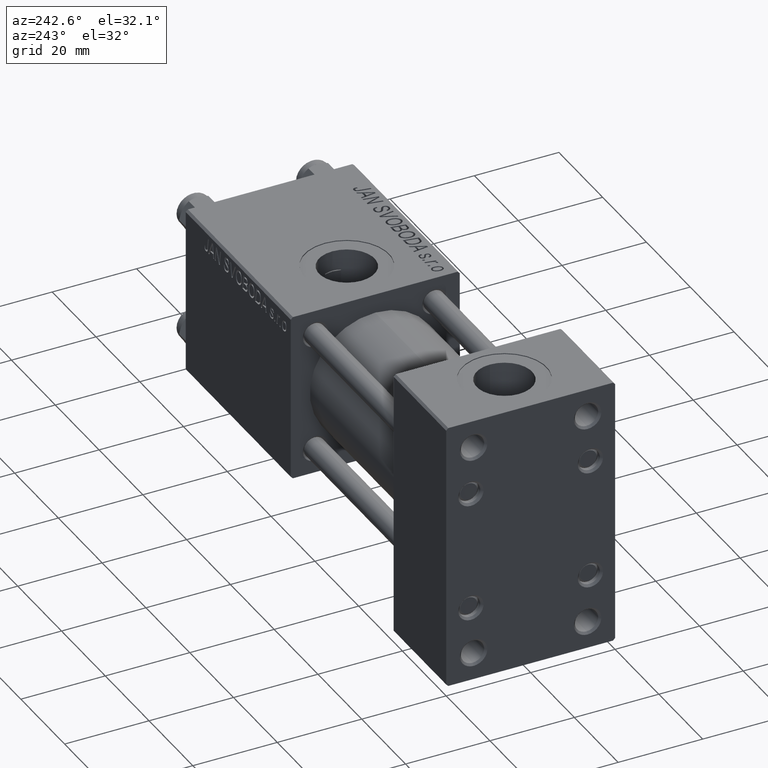
[diagram: clean part render]
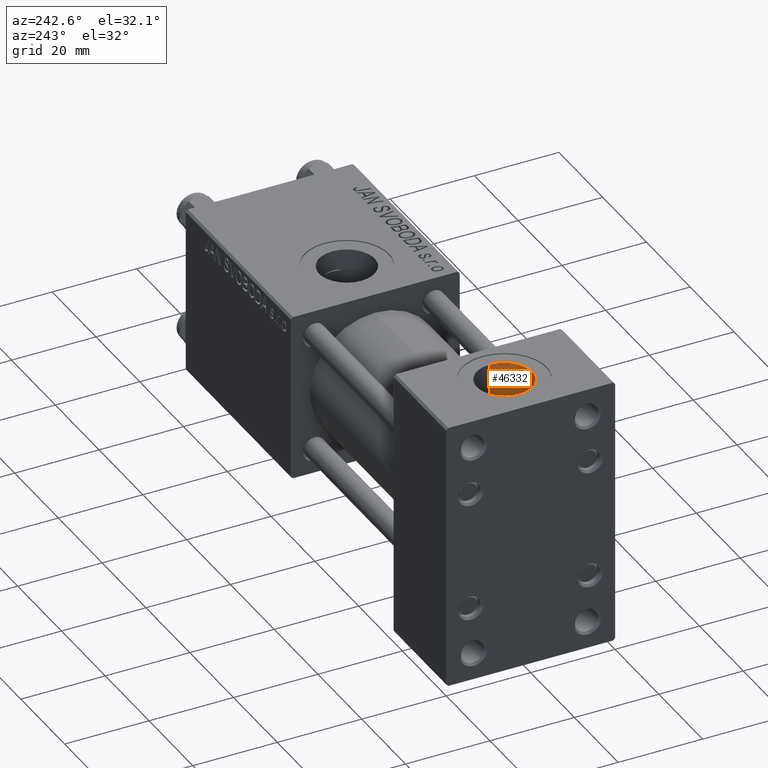
[diagram: same view with one face highlighted and labeled with its STEP entity id]
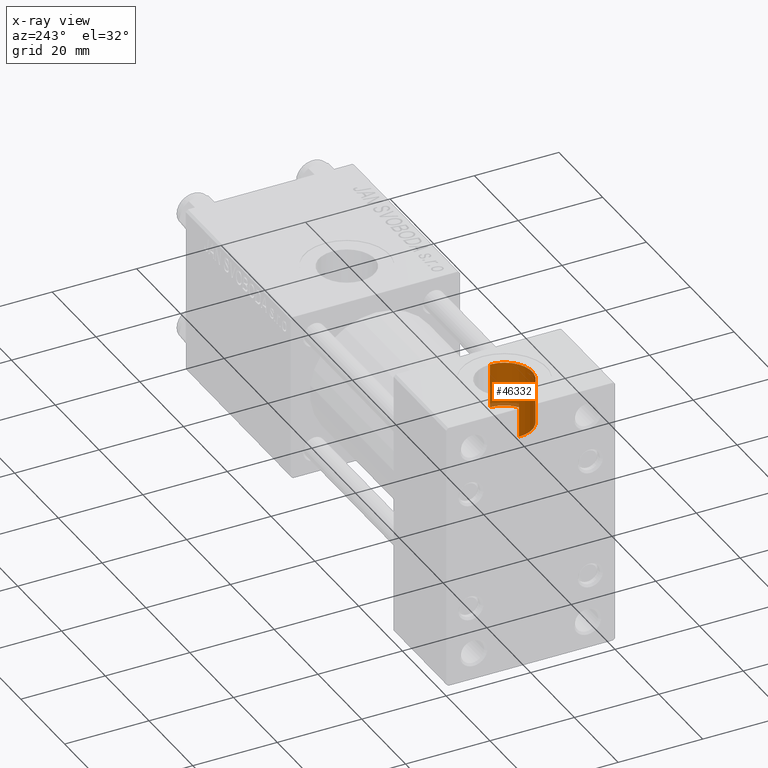
[diagram: x-ray of the same camera — body ghosted, the highlighted face saturated]
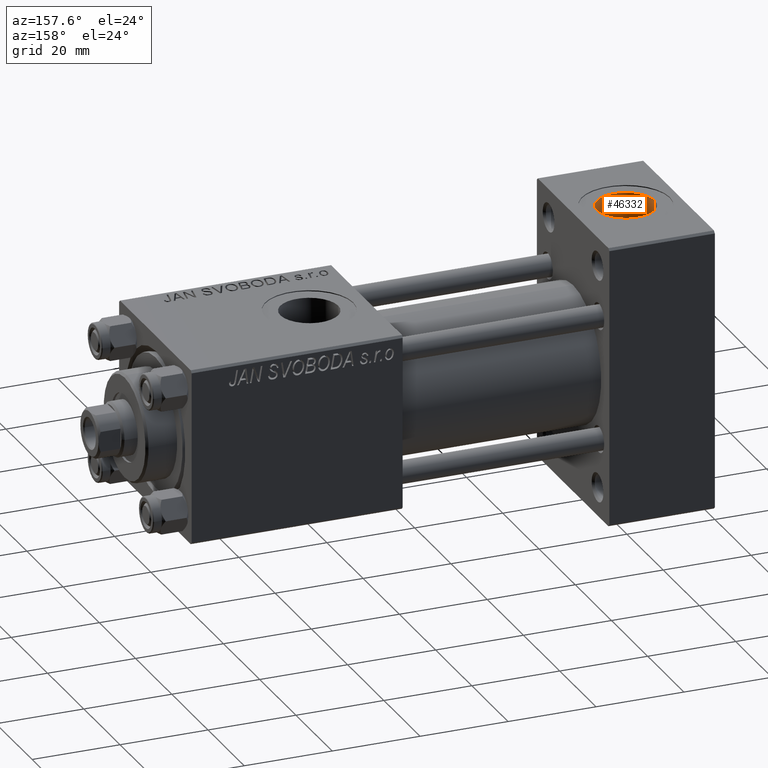
[diagram: same view with one face highlighted and labeled with its STEP entity id]
A machine part, auxiliary view. The second image highlights one B-rep face of the part: STEP entity #46332.
The next image is the same camera in x-ray: the body ghosted, the highlighted face saturated — about 4% of this face is hidden behind the body in this view.
A second angle (auxiliary view) of the same face is appended — the face is thin or edge-on in the first view.
In plain terms, the highlighted cylindrical surface (edge-blend (fillet) strip) has radius 6.58 mm, axis along (0, 0, 1).
Its self-contained STEP definition (entity closure, byte-faithful):
#3456 = CARTESIAN_POINT ( 'NONE',  ( 18.57999999999999829, 5.204170427930421283E-15, 21.16598726114649764 ) ) ;
#4476 = EDGE_CURVE ( 'NONE', #11085, #23590, #34327, .T. ) ;
#4746 = VECTOR ( 'NONE', #14409, 1000.000000000000000 ) ;
#5665 = LINE ( 'NONE', #16270, #48845 ) ;
#6040 = CARTESIAN_POINT ( 'NONE',  ( 12.00000000000000000, 5.204170427930421283E-15, 21.19999999999999929 ) ) ;
#7092 = CARTESIAN_POINT ( 'NONE',  ( 5.420000000000000817, 6.009988021769379536E-15, 21.19999999999999929 ) ) ;
#11085 = VERTEX_POINT ( 'NONE', #38213 ) ;
#11114 = CIRCLE ( 'NONE', #32044, 6.579999999999999183 ) ;
#14409 = DIRECTION ( 'NONE',  ( -0.000000000000000000, -0.000000000000000000, 1.000000000000000000 ) ) ;
#15077 = CARTESIAN_POINT ( 'NONE',  ( 18.57999999999999829, 5.204170427930421283E-15, 31.80000000000000071 ) ) ;
#15599 = AXIS2_PLACEMENT_3D ( 'NONE', #6040, #44122, #17129 ) ;
#15839 = DIRECTION ( 'NONE',  ( 1.000000000000000000, 0.000000000000000000, 0.000000000000000000 ) ) ;
#16270 = CARTESIAN_POINT ( 'NONE',  ( 18.57999999999999829, 5.204170427930421283E-15, 21.19999999999999929 ) ) ;
#17129 = DIRECTION ( 'NONE',  ( 1.000000000000000000, 0.000000000000000000, 0.000000000000000000 ) ) ;
#19731 = EDGE_CURVE ( 'NONE', #33906, #21714, #5665, .T. ) ;
#21714 = VERTEX_POINT ( 'NONE', #15077 ) ;
#23392 = CARTESIAN_POINT ( 'NONE',  ( 12.00000000000000000, 5.204170427930421283E-15, 31.80000000000000071 ) ) ;
#23590 = VERTEX_POINT ( 'NONE', #45727 ) ;
#24160 = EDGE_CURVE ( 'NONE', #33906, #11085, #33646, .T. ) ;
#25982 = EDGE_CURVE ( 'NONE', #23590, #21714, #11114, .T. ) ;
#28969 = FACE_OUTER_BOUND ( 'NONE', #36583, .T. ) ;
#31654 = DIRECTION ( 'NONE',  ( -0.000000000000000000, -0.000000000000000000, 1.000000000000000000 ) ) ;
#31926 = ORIENTED_EDGE ( 'NONE', *, *, #25982, .T. ) ;
#32044 = AXIS2_PLACEMENT_3D ( 'NONE', #23392, #38808, #15839 ) ;
#33646 = CIRCLE ( 'NONE', #42509, 6.579999999999999183 ) ;
#33906 = VERTEX_POINT ( 'NONE', #3456 ) ;
#34327 = LINE ( 'NONE', #7092, #4746 ) ;
#35665 = ORIENTED_EDGE ( 'NONE', *, *, #4476, .T. ) ;
#36231 = CARTESIAN_POINT ( 'NONE',  ( 12.00000000000000000, 5.204170427930421283E-15, 21.16598726114649764 ) ) ;
#36583 = EDGE_LOOP ( 'NONE', ( #42823, #35665, #31926, #48077 ) ) ;
#38213 = CARTESIAN_POINT ( 'NONE',  ( 5.420000000000000817, 6.009988021769379536E-15, 21.16598726114649764 ) ) ;
#38808 = DIRECTION ( 'NONE',  ( 0.000000000000000000, 0.000000000000000000, 1.000000000000000000 ) ) ;
#42509 = AXIS2_PLACEMENT_3D ( 'NONE', #36231, #48620, #44315 ) ;
#42823 = ORIENTED_EDGE ( 'NONE', *, *, #24160, .T. ) ;
#44122 = DIRECTION ( 'NONE',  ( -0.000000000000000000, -0.000000000000000000, 1.000000000000000000 ) ) ;
#44315 = DIRECTION ( 'NONE',  ( 1.000000000000000000, 0.000000000000000000, 0.000000000000000000 ) ) ;
#44878 = CYLINDRICAL_SURFACE ( 'NONE', #15599, 6.579999999999999183 ) ;
#45727 = CARTESIAN_POINT ( 'NONE',  ( 5.420000000000000817, 6.009988021769379536E-15, 31.80000000000000071 ) ) ;
#46332 = ADVANCED_FACE ( 'NONE', ( #28969 ), #44878, .F. ) ;
#48077 = ORIENTED_EDGE ( 'NONE', *, *, #19731, .F. ) ;
#48620 = DIRECTION ( 'NONE',  ( -0.000000000000000000, -0.000000000000000000, -1.000000000000000000 ) ) ;
#48845 = VECTOR ( 'NONE', #31654, 1000.000000000000000 ) ;